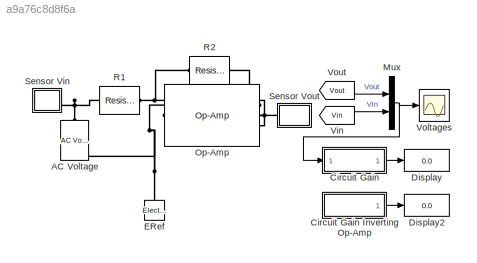
MODEL slx_a9a76c8d8f6a
KIND model
CONFIG AbsTol = auto
CONFIG EnableMultiTasking = off
CONFIG FixedStep = auto
CONFIG MaxStep = auto
CONFIG MinStep = auto
CONFIG RelTol = 1e-3
CONFIG SampleTimeConstraint = Unconstrained
CONFIG Solver = VariableStepAuto
CONFIG SolverName = VariableStepAuto
CONFIG StartTime = 0.0
CONFIG StopTime = 10.0
BLOCK [Reference] AC Voltage  REF=fl_lib/Electrical/Electrical Sources/AC Voltage Source
  Ports = [0, 0, 0, 0, 0, 1, 1]
  SourceBlock = fl_lib/Electrical/Electrical Sources/AC Voltage Source
  SourceProductBaseCode = SS
  SourceProductName = Simscape
  SourceType = AC Voltage Source
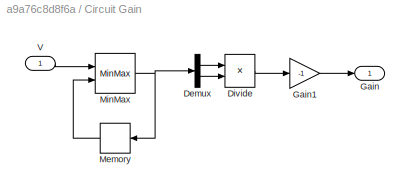
BLOCK [SubSystem] Circuit Gain
  Ports = [1, 1]
  RequestExecContextInheritance = off
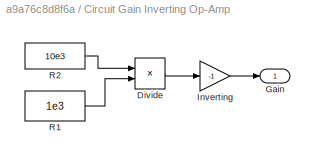
BLOCK [SubSystem] Circuit Gain Inverting Op-Amp
  Ports = [0, 1]
  RequestExecContextInheritance = off
BLOCK [Product] Circuit Gain Inverting Op-Amp/Divide
  InputSameDT = off
  Inputs = */
  OutDataTypeStr = Inherit: Inherit via internal rule
  Ports = [2, 1]
  RndMeth = Floor
  SaturateOnIntegerOverflow = off
BLOCK [Outport] Circuit Gain Inverting Op-Amp/Gain
  IconDisplay = Port number
BLOCK [Gain] Circuit Gain Inverting Op-Amp/Inverting
  Gain = -1
  OutDataTypeStr = Inherit: Inherit via internal rule
  ParamDataTypeStr = Inherit: Inherit via internal rule
  SaturateOnIntegerOverflow = off
BLOCK [Constant] Circuit Gain Inverting Op-Amp/R1
  Value = 1e3
BLOCK [Constant] Circuit Gain Inverting Op-Amp/R2
  Value = 10e3
BLOCK [Demux] Circuit Gain/Demux
  DisplayOption = bar
  Outputs = 2
  Ports = [1, 2]
BLOCK [Product] Circuit Gain/Divide
  InputSameDT = off
  Inputs = */
  OutDataTypeStr = Inherit: Inherit via internal rule
  Ports = [2, 1]
  RndMeth = Floor
  SaturateOnIntegerOverflow = off
BLOCK [Outport] Circuit Gain/Gain
  IconDisplay = Port number
BLOCK [Gain] Circuit Gain/Gain1
  Gain = -1
  OutDataTypeStr = Inherit: Inherit via internal rule
  ParamDataTypeStr = Inherit: Inherit via internal rule
  SaturateOnIntegerOverflow = off
BLOCK [Memory] Circuit Gain/Memory
  InheritSampleTime = on
  InitialCondition = 1e-15
BLOCK [MinMax] Circuit Gain/MinMax
  DisableCoverage = on
  Function = max
  InputSameDT = off
  Inputs = 2
  LockScale = on
  OutDataTypeStr = Inherit: Inherit via back propagation
  Ports = [2, 1]
  SaturateOnIntegerOverflow = off
  ZeroCross = off
BLOCK [Inport] Circuit Gain/V
  IconDisplay = Port number
BLOCK [Display] Display
  Decimation = 1
  Ports = [1]
BLOCK [Display] Display2
  Decimation = 1
  Ports = [1]
BLOCK [Reference] ERef  REF=fl_lib/Electrical/Electrical Elements/Electrical Reference
  Ports = [0, 0, 0, 0, 0, 1]
  SourceBlock = fl_lib/Electrical/Electrical Elements/Electrical Reference
  SourceProductBaseCode = SS
  SourceProductName = Simscape
  SourceType = Electrical Reference
BLOCK [Mux] Mux
  DisplayOption = bar
  Inputs = 2
  Ports = [2, 1]
BLOCK [Reference] Op-Amp  REF=fl_lib/Electrical/Electrical Elements/Op-Amp
  Ports = [0, 0, 0, 0, 0, 2, 1]
  SourceBlock = fl_lib/Electrical/Electrical Elements/Op-Amp
  SourceProductBaseCode = SS
  SourceProductName = Simscape
  SourceType = Op-Amp
BLOCK [Reference] R1  REF=fl_lib/Electrical/Electrical Elements/Resistor
  AttributesFormatString = %<R> %<R_unit>
  Ports = [0, 0, 0, 0, 0, 1, 1]
  SourceBlock = fl_lib/Electrical/Electrical Elements/Resistor
  SourceProductBaseCode = SS
  SourceProductName = Simscape
  SourceType = Resistor
BLOCK [Reference] R2  REF=fl_lib/Electrical/Electrical Elements/Resistor
  AttributesFormatString = %<R> %<R_unit>
  Ports = [0, 0, 0, 0, 0, 1, 1]
  SourceBlock = fl_lib/Electrical/Electrical Elements/Resistor
  SourceProductBaseCode = SS
  SourceProductName = Simscape
  SourceType = Resistor
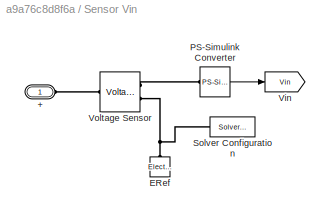
BLOCK [SubSystem] Sensor Vin
  Ports = [0, 0, 0, 0, 0, 1]
  RequestExecContextInheritance = off
BLOCK [PMIOPort] Sensor Vin/+
  Side = Left
BLOCK [Reference] Sensor Vin/ERef  REF=fl_lib/Electrical/Electrical Elements/Electrical Reference
  Ports = [0, 0, 0, 0, 0, 1]
  SourceBlock = fl_lib/Electrical/Electrical Elements/Electrical Reference
  SourceProductBaseCode = SS
  SourceProductName = Simscape
  SourceType = Electrical Reference
BLOCK [Reference] Sensor Vin/PS-Simulink Converter  REF=nesl_utility/PS-Simulink
Converter
  Ports = [0, 1, 0, 0, 0, 1]
  SourceBlock = nesl_utility/PS-Simulink\nConverter
  SourceProductBaseCode = SS
  SourceProductName = Simscape
  SourceType = PS-Simulink\nConverter
BLOCK [Reference] Sensor Vin/Solver Configuration  REF=nesl_utility/Solver
Configuration
  Ports = [0, 0, 0, 0, 0, 0, 1]
  SourceBlock = nesl_utility/Solver\nConfiguration
  SourceProductBaseCode = SS
  SourceProductName = Simscape
  SourceType = Solver\nConfiguration
BLOCK [Goto] Sensor Vin/Vin
  GotoTag = Vin
  TagVisibility = global
BLOCK [Reference] Sensor Vin/Voltage Sensor  REF=fl_lib/Electrical/Electrical Sensors/Voltage Sensor
  Ports = [0, 0, 0, 0, 0, 1, 2]
  SourceBlock = fl_lib/Electrical/Electrical Sensors/Voltage Sensor
  SourceProductBaseCode = SS
  SourceProductName = Simscape
  SourceType = Voltage Sensor
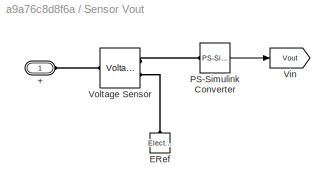
BLOCK [SubSystem] Sensor Vout
  Ports = [0, 0, 0, 0, 0, 1]
  RequestExecContextInheritance = off
BLOCK [PMIOPort] Sensor Vout/+
  Side = Left
BLOCK [Reference] Sensor Vout/ERef  REF=fl_lib/Electrical/Electrical Elements/Electrical Reference
  Ports = [0, 0, 0, 0, 0, 1]
  SourceBlock = fl_lib/Electrical/Electrical Elements/Electrical Reference
  SourceProductBaseCode = SS
  SourceProductName = Simscape
  SourceType = Electrical Reference
BLOCK [Reference] Sensor Vout/PS-Simulink Converter  REF=nesl_utility/PS-Simulink
Converter
  Ports = [0, 1, 0, 0, 0, 1]
  SourceBlock = nesl_utility/PS-Simulink\nConverter
  SourceProductBaseCode = SS
  SourceProductName = Simscape
  SourceType = PS-Simulink\nConverter
BLOCK [Goto] Sensor Vout/Vin
  GotoTag = Vout
  TagVisibility = global
BLOCK [Reference] Sensor Vout/Voltage Sensor  REF=fl_lib/Electrical/Electrical Sensors/Voltage Sensor
  Ports = [0, 0, 0, 0, 0, 1, 2]
  SourceBlock = fl_lib/Electrical/Electrical Sensors/Voltage Sensor
  SourceProductBaseCode = SS
  SourceProductName = Simscape
  SourceType = Voltage Sensor
BLOCK [From] Vin
  GotoTag = Vin
  TagVisibility = global
BLOCK [Scope] Voltages
  Floating = off
  NumInputPorts = 1
  Ports = [1]
  ScopeSpecificationString = Simulink.scopes.TimeScopeBlockCfg('CurrentConfiguration', extmgr.ConfigurationSet(extmgr.Configuration('Core','General UI',true,'FigureColor',[0.501960784313725 0.501960784313725 0.501960784313725]),extmgr.Configuration('Core','Source UI',true),extmgr.Configuration('Sources','WiredSimulink',true,'DataLoggingSaveFormat','StructureWithTime','DataLoggingLimitDataPoints',true,'DataLoggingDecimation','...<+2591ch>
BLOCK [From] Vout
  GotoTag = Vout
  TagVisibility = global
LINE Circuit Gain Inverting Op-Amp/Divide:1 -> Circuit Gain Inverting Op-Amp/Inverting:1
LINE Circuit Gain Inverting Op-Amp/Inverting:1 -> Circuit Gain Inverting Op-Amp/Gain:1
LINE Circuit Gain Inverting Op-Amp/R1:1 -> Circuit Gain Inverting Op-Amp/Divide:2
LINE Circuit Gain Inverting Op-Amp/R2:1 -> Circuit Gain Inverting Op-Amp/Divide:1
LINE Circuit Gain Inverting Op-Amp:1 -> Display2:1
LINE Circuit Gain/Demux:1 -> Circuit Gain/Divide:1
LINE Circuit Gain/Demux:2 -> Circuit Gain/Divide:2
LINE Circuit Gain/Divide:1 -> Circuit Gain/Gain1:1
LINE Circuit Gain/Gain1:1 -> Circuit Gain/Gain:1
LINE Circuit Gain/Memory:1 -> Circuit Gain/MinMax:2
NET Circuit Gain/MinMax:1 -> Circuit Gain/Demux:1, Circuit Gain/Memory:1
LINE Circuit Gain/V:1 -> Circuit Gain/MinMax:1
LINE Circuit Gain:1 -> Display:1
NET Mux:1 -> Circuit Gain:1, Voltages:1
LINE Sensor Vin/PS-Simulink Converter:1 -> Sensor Vin/Vin:1
LINE Sensor Vout/PS-Simulink Converter:1 -> Sensor Vout/Vin:1
LINE Vin:1 -> Mux:2
LINE Vout:1 -> Mux:1
PNET net1: AC Voltage:LConn1 -- R1:LConn1 -- Sensor Vin:LConn1
PNET net2: AC Voltage:RConn1 -- ERef:LConn1 -- Op-Amp:LConn1
PNET net3: Op-Amp:LConn2 -- R1:RConn1 -- R2:LConn1
PNET net4: Op-Amp:RConn1 -- R2:RConn1 -- Sensor Vout:LConn1
PLINE Sensor Vin/+:RConn1 -- Sensor Vin/Voltage Sensor:LConn1
PNET net5: Sensor Vin/ERef:LConn1 -- Sensor Vin/Solver Configuration:RConn1 -- Sensor Vin/Voltage Sensor:RConn2
PLINE Sensor Vin/PS-Simulink Converter:LConn1 -- Sensor Vin/Voltage Sensor:RConn1
PLINE Sensor Vout/+:RConn1 -- Sensor Vout/Voltage Sensor:LConn1
PLINE Sensor Vout/ERef:LConn1 -- Sensor Vout/Voltage Sensor:RConn2
PLINE Sensor Vout/PS-Simulink Converter:LConn1 -- Sensor Vout/Voltage Sensor:RConn1
note: NET lines group one-source signal fan-out (src -> all destinations, sorted); 1:1 wires keep LINE; PNET lines group multi-terminal physical nets as a canonical sorted terminal list (undirected conserving connections); 2-terminal nets keep the pairwise PLINE form
